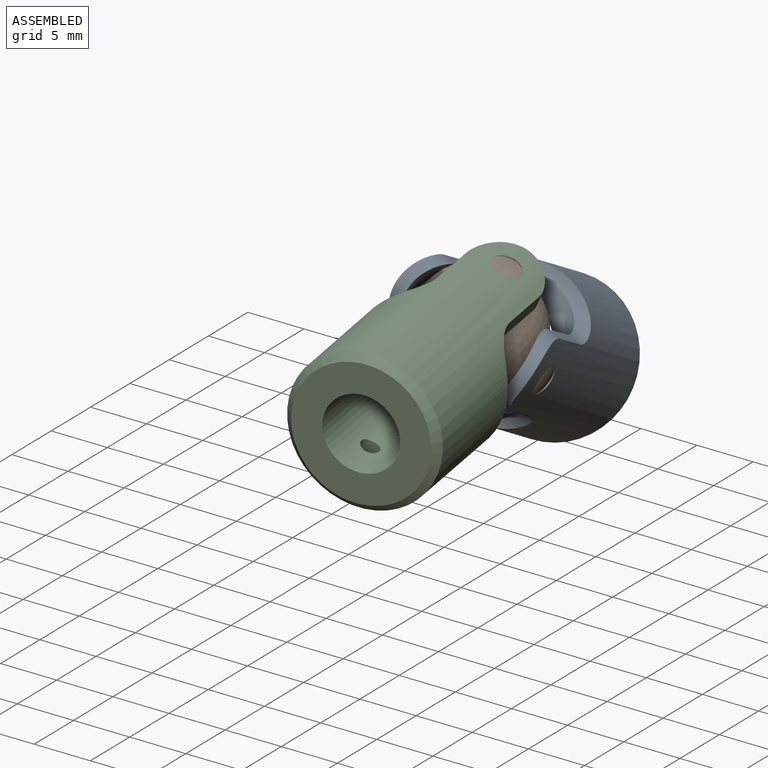
[diagram: assembled view]
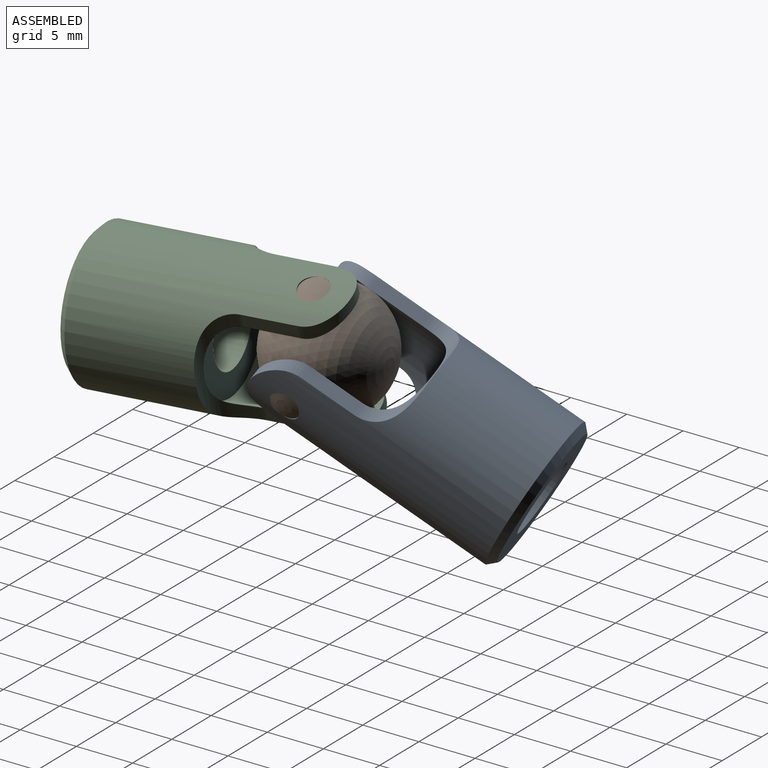
[diagram: assembled view, second angle]
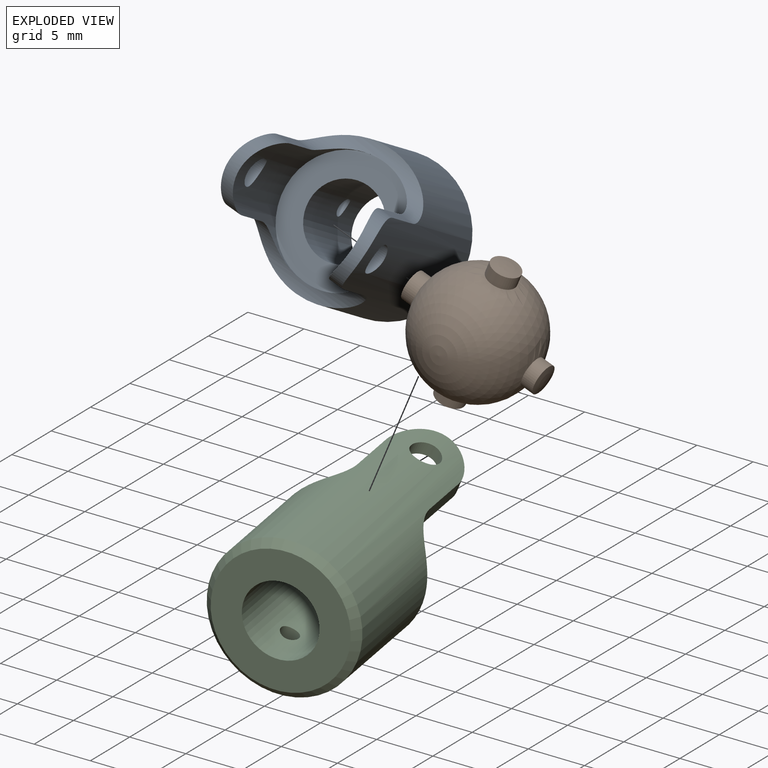
[diagram: exploded view]
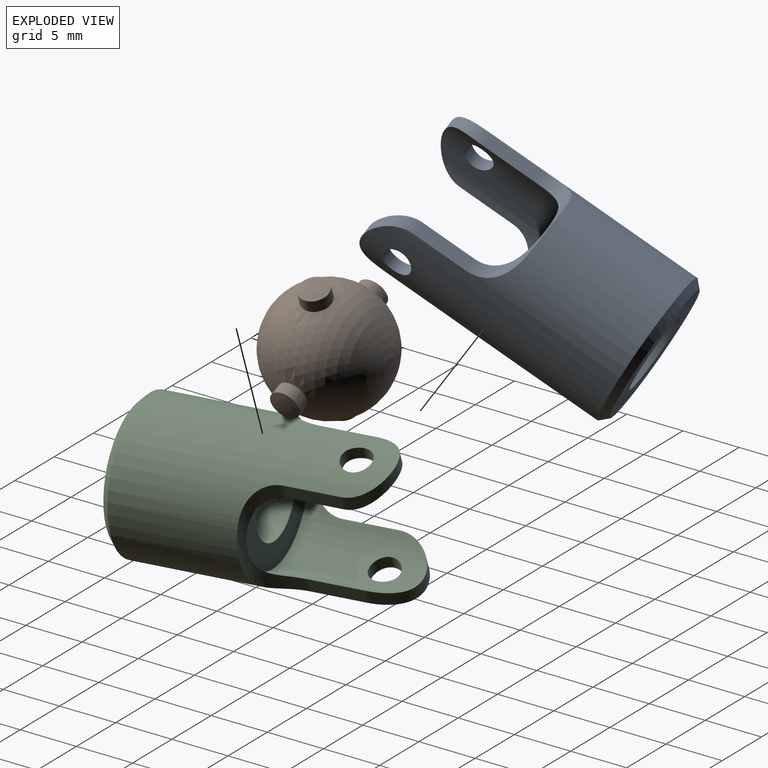
[diagram: exploded view, second angle]
ASSEMBLY  parts=3 mates=2
PART A: 19 faces, bbox 22.2x12.7x12.7 mm
  f0: cylinder r=6.35mm len=21.59mm, axis (-1,0,0), area 553.7mm2, adj f3,f4,f5,f6,f7,f8,f9,f10
  f1: cylinder r=5.29mm len=11.05mm, axis (-1,0,0), area 144.2mm2, adj f4,f5,f6,f7,f8,f9,f10,f11
  f2: plane 11.43x11.43mm, normal (-1,0,0), area 71mm2, adj f12,f15
  f3: cylinder r=0.78mm len=3.23mm, axis (0,1,0), area 15.6mm2, adj f0,f15
  f4: cylinder r=3.17mm len=11mm, axis (0,-1,0), area 17.3mm2, adj f0,f1,f5,f6
  f5: plane 4.7x1.27mm, normal (0,0,-1), area 5.9mm2, adj f0,f1,f4,f8
  f6: plane 4.7x1.27mm, normal (0,0,-1), area 5.9mm2, adj f0,f1,f4,f7
  f7: cylinder r=3.17mm len=6.35mm, axis (0,-1,0), area 11.5mm2, adj f0,f1,f6,f9
  f8: cylinder r=3.17mm len=6.35mm, axis (0,-1,0), area 11.5mm2, adj f0,f1,f5,f10
  f9: plane 4.7x1.27mm, normal (0,0,1), area 5.9mm2, adj f0,f1,f7,f11
  f10: plane 4.7x1.27mm, normal (0,0,1), area 5.9mm2, adj f0,f1,f8,f11
  f11: cylinder r=3.17mm len=11mm, axis (0,-1,0), area 17.3mm2, adj f0,f1,f9,f10
  f12: cone r=6.35mm half-angle=45deg, axis (1,0,0), area 34mm2, adj f0,f2
  f13: cylinder r=1.06mm len=2.12mm, axis (0,0,-1), area 10.3mm2, adj f0,f14
  f14: cone r=1.06mm half-angle=60deg, axis (0,0,1), area 4.1mm2, adj f13
  f15: cylinder r=3.17mm len=11.18mm, axis (-1,0,0), area 220.8mm2, adj f2,f3,f16
  f16: plane 10.58x10.58mm, normal (1,0,0), area 56.4mm2, adj f1,f15
  f17: cylinder r=1.27mm len=2.54mm, axis (0,-1,0), area 8.5mm2, adj f0,f1
  f18: cylinder r=1.27mm len=2.54mm, axis (0,-1,0), area 8.5mm2, adj f0,f1
PART B: 9 faces, bbox 10.6x12.7x12.7 mm
  f0: sphere r=5.29mm, area 331.3mm2, adj f1,f4,f6,f7
  f1: cylinder r=1.27mm len=2.54mm, axis (0,1,0), area 8.7mm2, adj f0,f2
  f2: sphere r=6.35mm, area 5.1mm2, adj f1
  f3: sphere r=6.35mm, area 5.1mm2, adj f4
  f4: cylinder r=1.27mm len=2.54mm, axis (0,1,0), area 8.7mm2, adj f0,f3
  f5: sphere r=6.35mm, area 5.1mm2, adj f6
  f6: cylinder r=1.27mm len=2.54mm, axis (0,0,-1), area 8.7mm2, adj f0,f5
  f7: cylinder r=1.27mm len=2.54mm, axis (0,0,-1), area 8.7mm2, adj f0,f8
  f8: sphere r=6.35mm, area 5.1mm2, adj f7
PART C: same geometry as A
PLACE A rot(axis=(0.75,-0.66,0.06),143deg) t=(0,0,0)mm
PLACE B rot(axis=(-0.69,-0.71,0.15),166.2deg) t=(0,0,0)mm fixed
PLACE C rot(axis=(-0.43,-0.51,0.75),114.1deg) t=(0,0,0)mm
MATE cylindrical C.f17 <-> B.f6  axis (0.37,0.04,0.93) through (1.91,0.23,4.75)mm
MATE cylindrical A.f17 <-> B.f1  axis (0.93,0.02,-0.37) through (-4.76,-0.09,1.91)mm
